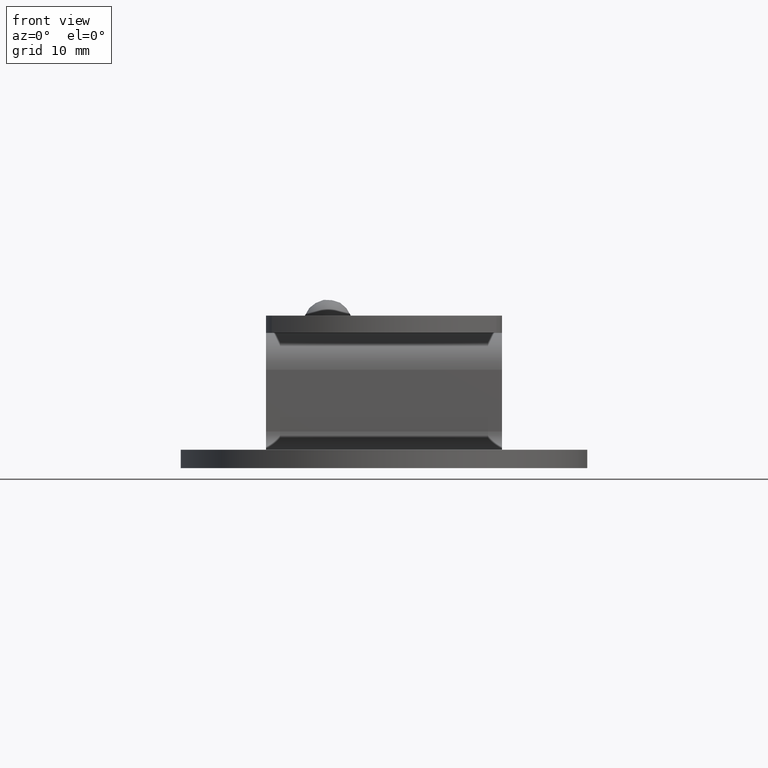
[diagram: clean part render]
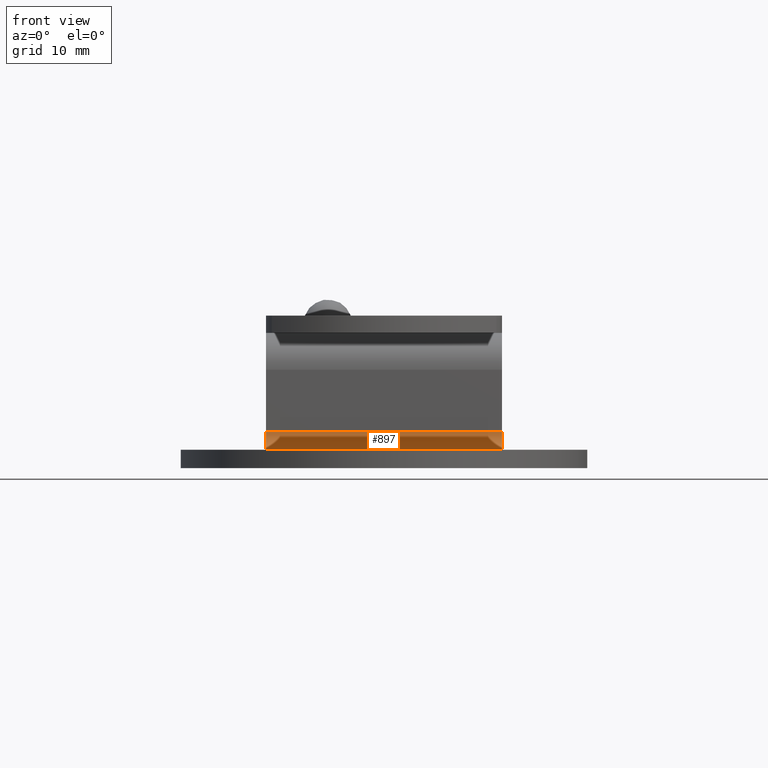
[diagram: same view with one face highlighted and labeled with its STEP entity id]
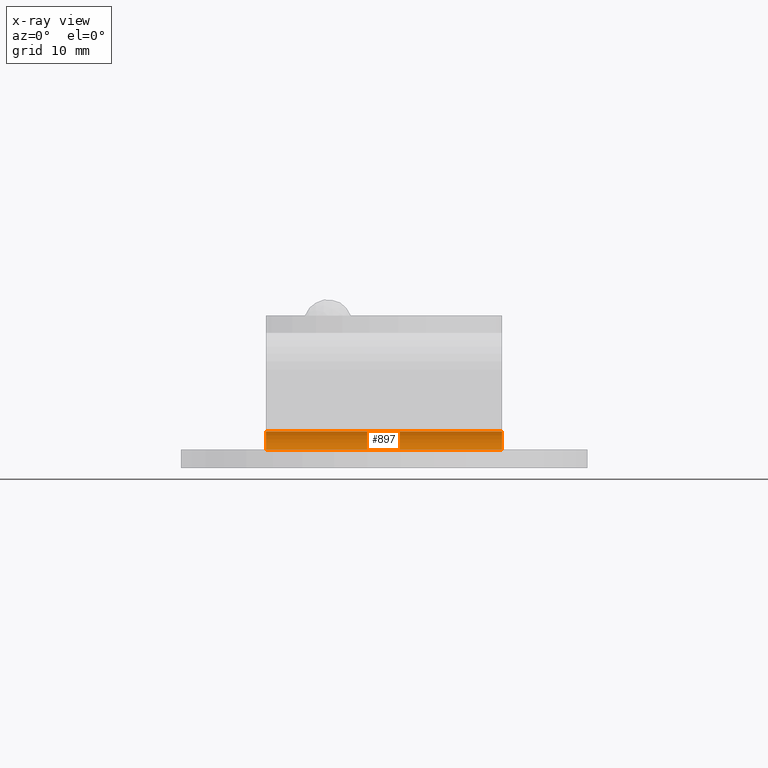
[diagram: x-ray of the same camera — body ghosted, the highlighted face saturated]
A machine part, front view. The second image highlights one B-rep face of the part: STEP entity #897.
The next image is the same camera in x-ray: the body ghosted, the highlighted face saturated — about 0% of this face is hidden behind the body in this view.
In plain terms, the highlighted cylindrical surface (edge-blend (fillet) strip) has radius 1.6 mm, axis along (1, 0, 0).
Its self-contained STEP definition (entity closure, byte-faithful):
#284=CARTESIAN_POINT('',(13.405585628369575,-0.541989947243079,3.200000000000001));
#285=VERTEX_POINT('',#284);
#292=CARTESIAN_POINT('',(13.405585628369575,-2.141989947243079,1.600000000000000));
#293=VERTEX_POINT('',#292);
#294=CARTESIAN_POINT('',(13.405585628369575,-2.141989947243079,3.200000000000001));
#295=DIRECTION('',(1.0,0.0,0.0));
#296=DIRECTION('',(0.0,0.0,-1.0));
#297=AXIS2_PLACEMENT_3D('',#294,#295,#296);
#298=CIRCLE('',#297,1.599999999999999);
#299=EDGE_CURVE('',#293,#285,#298,.T.);
#590=CARTESIAN_POINT('',(-7.094414371630422,-2.141989947243079,1.600000000000000));
#591=VERTEX_POINT('',#590);
#592=CARTESIAN_POINT('',(13.405585628369575,-2.141989947243079,1.600000000000000));
#593=DIRECTION('',(-1.0,0.0,0.0));
#594=VECTOR('',#593,20.499999999999996);
#595=LINE('',#592,#594);
#596=EDGE_CURVE('',#293,#591,#595,.T.);
#790=CARTESIAN_POINT('',(-7.094414371630422,-0.541989947243079,3.199999999999983));
#791=VERTEX_POINT('',#790);
#792=CARTESIAN_POINT('',(-7.094414371630422,-2.141989947243079,3.200000000000001));
#793=DIRECTION('',(1.0,0.0,0.0));
#794=DIRECTION('',(0.0,0.0,-1.0));
#795=AXIS2_PLACEMENT_3D('',#792,#793,#794);
#796=CIRCLE('',#795,1.599999999999999);
#797=EDGE_CURVE('',#591,#791,#796,.T.);
#859=CARTESIAN_POINT('',(13.405585628369575,-0.541989947243079,3.200000000000001));
#860=DIRECTION('',(-1.0,0.0,0.0));
#861=VECTOR('',#860,20.499999999999996);
#862=LINE('',#859,#861);
#863=EDGE_CURVE('',#285,#791,#862,.T.);
#886=CARTESIAN_POINT('',(3.155585628369577,-2.141989947243079,3.200000000000001));
#887=DIRECTION('',(1.0,0.0,0.0));
#888=DIRECTION('',(0.0,0.0,-1.0));
#889=AXIS2_PLACEMENT_3D('',#886,#887,#888);
#890=CYLINDRICAL_SURFACE('',#889,1.599999999999999);
#891=ORIENTED_EDGE('',*,*,#863,.T.);
#892=ORIENTED_EDGE('',*,*,#797,.F.);
#893=ORIENTED_EDGE('',*,*,#596,.F.);
#894=ORIENTED_EDGE('',*,*,#299,.T.);
#895=EDGE_LOOP('',(#891,#892,#893,#894));
#896=FACE_OUTER_BOUND('',#895,.T.);
#897=ADVANCED_FACE('',(#896),#890,.F.);